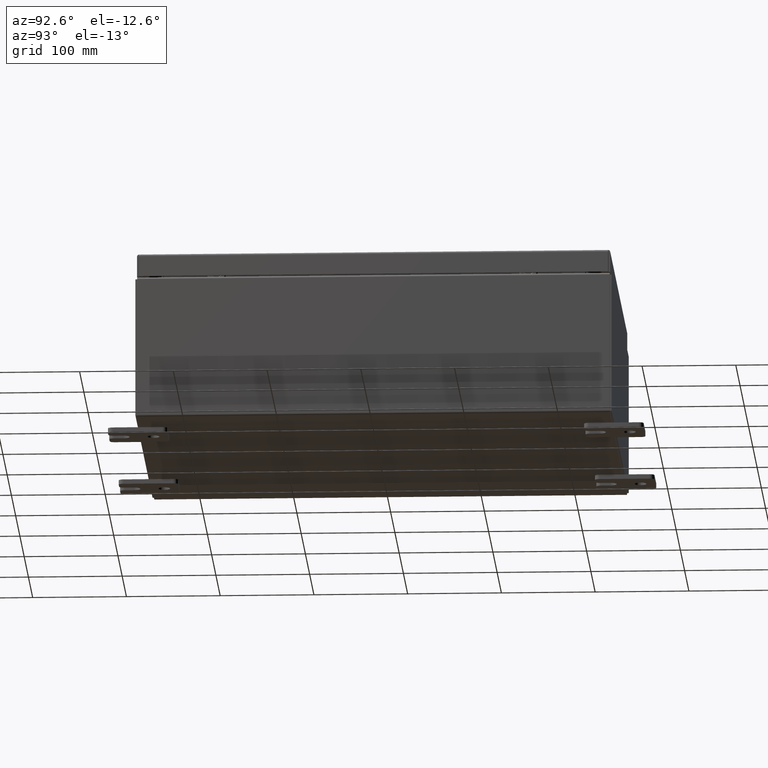
[diagram: clean part render]
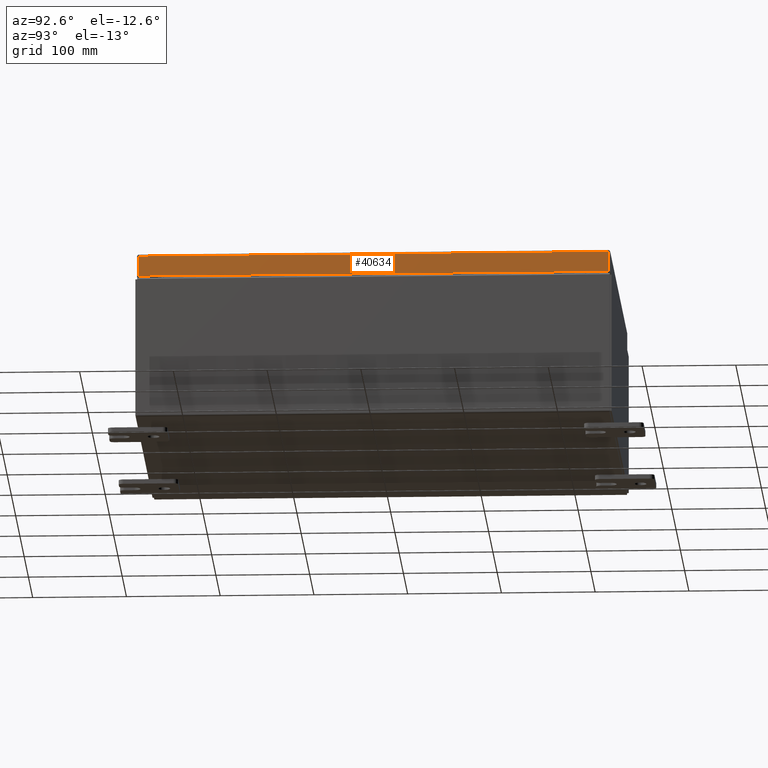
[diagram: same view with one face highlighted and labeled with its STEP entity id]
A machine part, auxiliary view. The second image highlights one B-rep face of the part: STEP entity #40634.
In plain terms, the highlighted planar face has unit normal (1, 0, 0).
Its self-contained STEP definition (entity closure, byte-faithful):
#2971 = VECTOR ( 'NONE', #47240, 39.37007874015748100 ) ;
#3790 = CARTESIAN_POINT ( 'NONE',  ( 7.937500000000000000, 9.848657864376265900, 9.918524867554336000E-014 ) ) ;
#8474 = VERTEX_POINT ( 'NONE', #15440 ) ;
#9067 = VECTOR ( 'NONE', #57644, 39.37007874015748100 ) ;
#9565 = CARTESIAN_POINT ( 'NONE',  ( 7.937500000000000000, 0.0000000000000000000, 3.041243838330255000E-014 ) ) ;
#10778 = CARTESIAN_POINT ( 'NONE',  ( 7.937500000000000000, 0.0000000000000000000, -0.08769999999999997200 ) ) ;
#12341 = AXIS2_PLACEMENT_3D ( 'NONE', #9565, #58397, #29131 ) ;
#13350 = CARTESIAN_POINT ( 'NONE',  ( 7.937500000000000000, -9.848657864376271200, -0.07469999999999972500 ) ) ;
#15440 = CARTESIAN_POINT ( 'NONE',  ( 7.937500000000000000, -9.848657864376271200, -0.08769999999999997200 ) ) ;
#16759 = ORIENTED_EDGE ( 'NONE', *, *, #60050, .T. ) ;
#19372 = ORIENTED_EDGE ( 'NONE', *, *, #59663, .F. ) ;
#21988 = LINE ( 'NONE', #38009, #9067 ) ;
#25324 = VERTEX_POINT ( 'NONE', #43214 ) ;
#27862 = EDGE_CURVE ( 'NONE', #25324, #36205, #21988, .T. ) ;
#27928 = EDGE_LOOP ( 'NONE', ( #19372, #36495, #30796, #16759 ) ) ;
#28303 = CARTESIAN_POINT ( 'NONE',  ( 7.937500000000000000, 9.848657864376269400, -0.08769999999999997200 ) ) ;
#29131 = DIRECTION ( 'NONE',  ( 3.798629886902798700E-015, 0.0000000000000000000, -1.000000000000000000 ) ) ;
#29621 = LINE ( 'NONE', #10778, #39563 ) ;
#30796 = ORIENTED_EDGE ( 'NONE', *, *, #38723, .T. ) ;
#31729 = VECTOR ( 'NONE', #52809, 39.37007874015748100 ) ;
#31949 = VERTEX_POINT ( 'NONE', #28303 ) ;
#33138 = FACE_OUTER_BOUND ( 'NONE', #27928, .T. ) ;
#34869 = DIRECTION ( 'NONE',  ( 0.0000000000000000000, -1.000000000000000000, 0.0000000000000000000 ) ) ;
#36205 = VERTEX_POINT ( 'NONE', #40064 ) ;
#36495 = ORIENTED_EDGE ( 'NONE', *, *, #27862, .F. ) ;
#38009 = CARTESIAN_POINT ( 'NONE',  ( 7.937500000000003600, -9.937500000000001800, -0.9376999999999997600 ) ) ;
#38723 = EDGE_CURVE ( 'NONE', #25324, #31949, #57711, .T. ) ;
#38756 = PLANE ( 'NONE',  #12341 ) ;
#39563 = VECTOR ( 'NONE', #34869, 39.37007874015748100 ) ;
#40064 = CARTESIAN_POINT ( 'NONE',  ( 7.937500000000003600, -9.848657864376264100, -0.9376999999999997600 ) ) ;
#40634 = ADVANCED_FACE ( 'NONE', ( #33138 ), #38756, .T. ) ;
#43214 = CARTESIAN_POINT ( 'NONE',  ( 7.937500000000003600, 9.848657864376273000, -0.9376999999999997600 ) ) ;
#47240 = DIRECTION ( 'NONE',  ( -3.798629886902798700E-015, -6.982962677686267500E-015, 1.000000000000000000 ) ) ;
#52809 = DIRECTION ( 'NONE',  ( -3.798629886902798700E-015, -6.982962677686267500E-015, 1.000000000000000000 ) ) ;
#57644 = DIRECTION ( 'NONE',  ( 0.0000000000000000000, -1.000000000000000000, 0.0000000000000000000 ) ) ;
#57711 = LINE ( 'NONE', #3790, #31729 ) ;
#58397 = DIRECTION ( 'NONE',  ( 1.000000000000000000, 0.0000000000000000000, 3.798629886902798700E-015 ) ) ;
#59663 = EDGE_CURVE ( 'NONE', #36205, #8474, #63276, .T. ) ;
#60050 = EDGE_CURVE ( 'NONE', #31949, #8474, #29621, .T. ) ;
#63276 = LINE ( 'NONE', #13350, #2971 ) ;